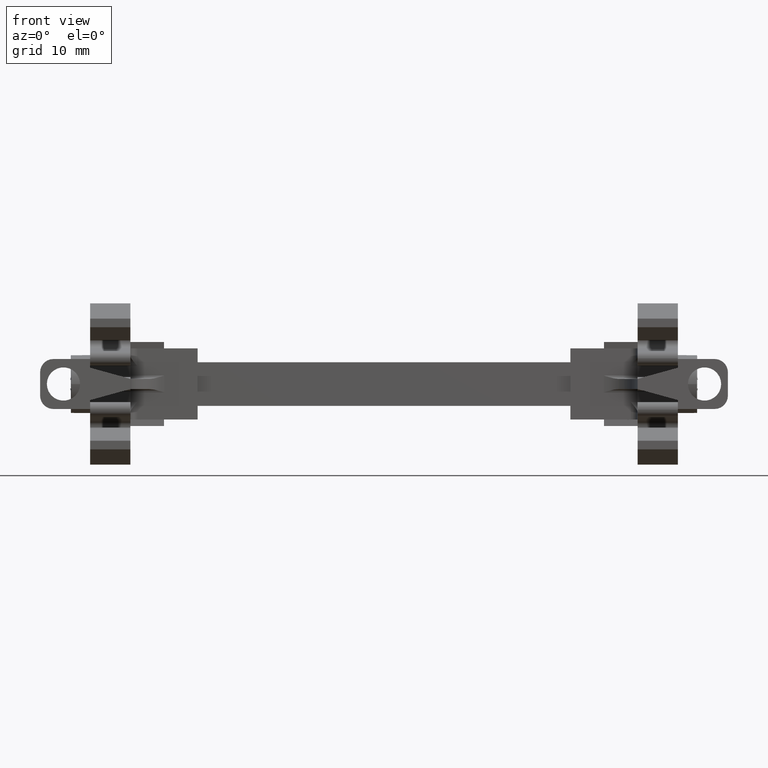
[diagram: clean part render]
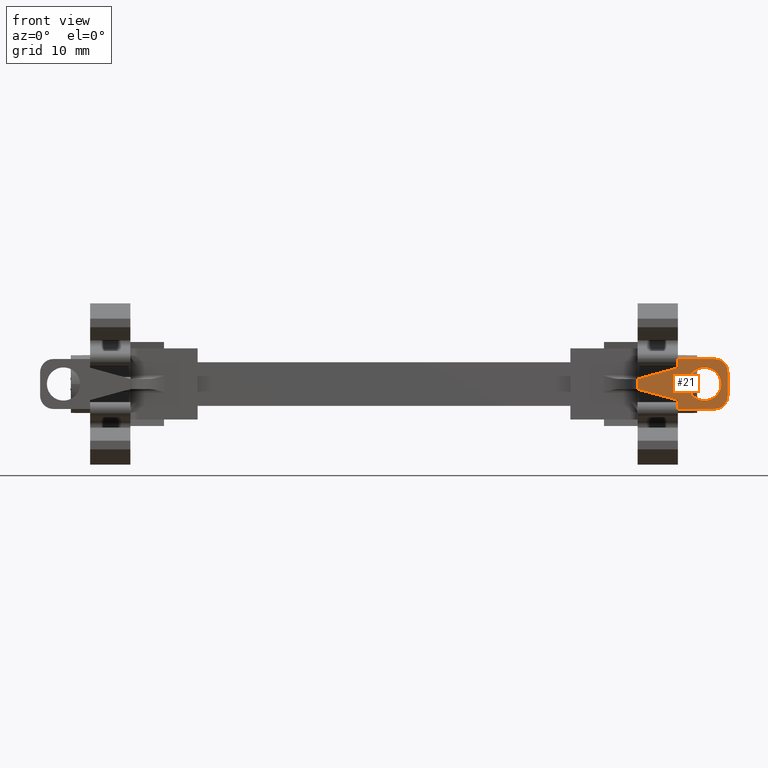
[diagram: same view with one face highlighted and labeled with its STEP entity id]
A machine part, front view. The second image highlights one B-rep face of the part: STEP entity #21.
In plain terms, the highlighted planar face has unit normal (0, -1, 0).
Its self-contained STEP definition (entity closure, byte-faithful):
#3 = EDGE_CURVE ( 'NONE', #3653, #3718, #21605, .T. ) ;
#9 = EDGE_CURVE ( 'NONE', #3646, #3713, #21642, .T. ) ;
#20 = EDGE_CURVE ( 'NONE', #3638, #3747, #447, .T. ) ;
#21 = ADVANCED_FACE ( 'NONE', ( #21685, #21665 ), #21684, .T. ) ;
#25 = EDGE_CURVE ( 'NONE', #3638, #3653, #21716, .T. ) ;
#30 = EDGE_CURVE ( 'NONE', #3718, #3646, #21720, .T. ) ;
#41 = EDGE_CURVE ( 'NONE', #3277, #3308, #467, .T. ) ;
#412 = VECTOR ( 'NONE', #21636, 1000.000000000000000 ) ;
#422 = AXIS2_PLACEMENT_3D ( 'NONE', #21649, #21715, #21708 ) ;
#429 = AXIS2_PLACEMENT_3D ( 'NONE', #21695, #21737, #21712 ) ;
#433 = VECTOR ( 'NONE', #21710, 1000.000000000000000 ) ;
#447 = CIRCLE ( 'NONE', #422, 1.980000000000002600 ) ;
#449 = VECTOR ( 'NONE', #21705, 1000.000000000000000 ) ;
#451 = VECTOR ( 'NONE', #21680, 1000.000000000000000 ) ;
#466 = AXIS2_PLACEMENT_3D ( 'NONE', #21816, #21834, #21785 ) ;
#467 = CIRCLE ( 'NONE', #466, 2.474999999999997900 ) ;
#918 = AXIS2_PLACEMENT_3D ( 'NONE', #8039, #8024, #8055 ) ;
#939 = CIRCLE ( 'NONE', #918, 2.474999999999997900 ) ;
#1578 = VECTOR ( 'NONE', #14419, 1000.000000000000000 ) ;
#1601 = VECTOR ( 'NONE', #14375, 1000.000000000000000 ) ;
#3277 = VERTEX_POINT ( 'NONE', #5676 ) ;
#3308 = VERTEX_POINT ( 'NONE', #5685 ) ;
#3602 = VERTEX_POINT ( 'NONE', #5892 ) ;
#3638 = VERTEX_POINT ( 'NONE', #5891 ) ;
#3646 = VERTEX_POINT ( 'NONE', #5913 ) ;
#3651 = VERTEX_POINT ( 'NONE', #5874 ) ;
#3653 = VERTEX_POINT ( 'NONE', #5866 ) ;
#3713 = VERTEX_POINT ( 'NONE', #5953 ) ;
#3714 = VERTEX_POINT ( 'NONE', #5961 ) ;
#3718 = VERTEX_POINT ( 'NONE', #5943 ) ;
#3733 = VERTEX_POINT ( 'NONE', #5931 ) ;
#3747 = VERTEX_POINT ( 'NONE', #5923 ) ;
#4426 = VECTOR ( 'NONE', #9257, 1000.000000000000000 ) ;
#4458 = VECTOR ( 'NONE', #10370, 1000.000000000000000 ) ;
#4559 = CIRCLE ( 'NONE', #4563, 1.980000000000002600 ) ;
#4563 = AXIS2_PLACEMENT_3D ( 'NONE', #9448, #9469, #9495 ) ;
#5676 = CARTESIAN_POINT ( 'NONE',  ( -52.33664581438637200, -112.7399380817970200, 215.9835481131995000 ) ) ;
#5685 = CARTESIAN_POINT ( 'NONE',  ( -47.38664581438637700, -112.7399380817969600, 215.9835481131995000 ) ) ;
#5866 = CARTESIAN_POINT ( 'NONE',  ( -53.82164581438640000, -112.7399380817969900, 219.7048630735139900 ) ) ;
#5874 = CARTESIAN_POINT ( 'NONE',  ( -53.82164581438633600, -112.7399380817970600, 212.2622331528851000 ) ) ;
#5891 = CARTESIAN_POINT ( 'NONE',  ( -48.36164581438638500, -112.7399380817969900, 219.7048630735140500 ) ) ;
#5892 = CARTESIAN_POINT ( 'NONE',  ( -53.82164581438628700, -112.7399380817970600, 213.5675638474400300 ) ) ;
#5913 = CARTESIAN_POINT ( 'NONE',  ( -59.82164581438628700, -112.7399380817970500, 216.7335480981489600 ) ) ;
#5923 = CARTESIAN_POINT ( 'NONE',  ( -46.38164581438637400, -112.7399380817969600, 217.7248630735140900 ) ) ;
#5931 = CARTESIAN_POINT ( 'NONE',  ( -46.38164581438636700, -112.7399380817969900, 214.2422331528850100 ) ) ;
#5943 = CARTESIAN_POINT ( 'NONE',  ( -53.82164581438637200, -112.7399380817970400, 218.3875323488580000 ) ) ;
#5953 = CARTESIAN_POINT ( 'NONE',  ( -59.82164581438630800, -112.7399380817971100, 215.2215480981490400 ) ) ;
#5961 = CARTESIAN_POINT ( 'NONE',  ( -48.36164581438635700, -112.7399380817970600, 212.2622331528851000 ) ) ;
#8024 = DIRECTION ( 'NONE',  ( -1.101172293446148100E-014, 1.000000000000000000, 0.0000000000000000000 ) ) ;
#8039 = CARTESIAN_POINT ( 'NONE',  ( -49.86164581438637100, -112.7399380817969900, 215.9835481131995000 ) ) ;
#8055 = DIRECTION ( 'NONE',  ( -1.000000000000000000, -1.121437398611270200E-014, 0.0000000000000000000 ) ) ;
#8640 = EDGE_CURVE ( 'NONE', #3747, #3733, #14386, .T. ) ;
#8668 = EDGE_CURVE ( 'NONE', #3713, #3602, #14417, .T. ) ;
#9202 = LINE ( 'NONE', #9218, #4426 ) ;
#9218 = CARTESIAN_POINT ( 'NONE',  ( -53.82164581438652100, -112.7399380817971100, 212.2622331528851000 ) ) ;
#9257 = DIRECTION ( 'NONE',  ( 1.000000000000000000, 0.0000000000000000000, 2.403906012228000300E-015 ) ) ;
#9385 = EDGE_CURVE ( 'NONE', #3308, #3277, #939, .T. ) ;
#9448 = CARTESIAN_POINT ( 'NONE',  ( -48.36164581438637800, -112.7399380817970200, 214.2422331528850100 ) ) ;
#9469 = DIRECTION ( 'NONE',  ( -1.049160784736400100E-014, 1.000000000000000000, -9.044991914139729700E-037 ) ) ;
#9495 = DIRECTION ( 'NONE',  ( 1.000000000000000000, 7.008983741320423700E-015, 0.0000000000000000000 ) ) ;
#10323 = LINE ( 'NONE', #10342, #4458 ) ;
#10342 = CARTESIAN_POINT ( 'NONE',  ( -53.82164581438628700, -112.7399380817969900, 188.2738655272060600 ) ) ;
#10370 = DIRECTION ( 'NONE',  ( 0.0000000000000000000, -0.0000000000000000000, -1.000000000000000000 ) ) ;
#14375 = DIRECTION ( 'NONE',  ( 1.759965832074445300E-015, 1.846487133488476300E-029, -1.000000000000000000 ) ) ;
#14380 = CARTESIAN_POINT ( 'NONE',  ( -46.38164581438637400, -112.7399380817969600, 219.7048630735139900 ) ) ;
#14386 = LINE ( 'NONE', #14380, #1601 ) ;
#14417 = LINE ( 'NONE', #14440, #1578 ) ;
#14419 = DIRECTION ( 'NONE',  ( 0.9640415414303847900, 0.0000000000000000000, -0.2657515877591849500 ) ) ;
#14440 = CARTESIAN_POINT ( 'NONE',  ( -59.82164581438620100, -112.7399380817971200, 215.2215480981490400 ) ) ;
#17004 = EDGE_LOOP ( 'NONE', ( #23904, #24096, #24000, #23886, #23915, #23953, #23944, #24076, #23917, #23955 ) ) ;
#17005 = EDGE_LOOP ( 'NONE', ( #23983, #23985 ) ) ;
#17478 = EDGE_CURVE ( 'NONE', #3602, #3651, #10323, .T. ) ;
#17531 = EDGE_CURVE ( 'NONE', #3651, #3714, #9202, .T. ) ;
#17565 = EDGE_CURVE ( 'NONE', #3733, #3714, #4559, .T. ) ;
#21605 = LINE ( 'NONE', #21606, #412 ) ;
#21606 = CARTESIAN_POINT ( 'NONE',  ( -53.82164581438640000, -112.7399380817969900, 188.2738655272060600 ) ) ;
#21636 = DIRECTION ( 'NONE',  ( 0.0000000000000000000, -0.0000000000000000000, -1.000000000000000000 ) ) ;
#21642 = LINE ( 'NONE', #21643, #451 ) ;
#21643 = CARTESIAN_POINT ( 'NONE',  ( -59.82164581438628700, -112.7399380817970600, 188.2738655272060600 ) ) ;
#21649 = CARTESIAN_POINT ( 'NONE',  ( -48.36164581438637800, -112.7399380817969900, 217.7248630735140900 ) ) ;
#21665 = FACE_OUTER_BOUND ( 'NONE', #17004, .T. ) ;
#21680 = DIRECTION ( 'NONE',  ( 0.0000000000000000000, -0.0000000000000000000, -1.000000000000000000 ) ) ;
#21684 = PLANE ( 'NONE',  #429 ) ;
#21685 = FACE_BOUND ( 'NONE', #17005, .T. ) ;
#21695 = CARTESIAN_POINT ( 'NONE',  ( -53.82164581438629400, -112.7399380817969900, 188.2738655272060600 ) ) ;
#21705 = DIRECTION ( 'NONE',  ( -1.000000000000000000, 0.0000000000000000000, -2.403906012228000300E-015 ) ) ;
#21708 = DIRECTION ( 'NONE',  ( -1.000000000000000000, -7.008983741320423700E-015, 0.0000000000000000000 ) ) ;
#21710 = DIRECTION ( 'NONE',  ( -0.9640415414303835600, 0.0000000000000000000, -0.2657515877591893900 ) ) ;
#21712 = DIRECTION ( 'NONE',  ( 1.000000000000000000, 1.101172293446148100E-014, 0.0000000000000000000 ) ) ;
#21715 = DIRECTION ( 'NONE',  ( -1.049160784736400100E-014, 1.000000000000000000, 2.802596928649635400E-045 ) ) ;
#21716 = LINE ( 'NONE', #21736, #449 ) ;
#21720 = LINE ( 'NONE', #21723, #433 ) ;
#21723 = CARTESIAN_POINT ( 'NONE',  ( -53.82164581438630100, -112.7399380817970500, 218.3875323488580300 ) ) ;
#21736 = CARTESIAN_POINT ( 'NONE',  ( -53.82164581438652100, -112.7399380817969900, 219.7048630735139900 ) ) ;
#21737 = DIRECTION ( 'NONE',  ( 1.101172293446148100E-014, -1.000000000000000000, 0.0000000000000000000 ) ) ;
#21785 = DIRECTION ( 'NONE',  ( -1.000000000000000000, -1.121437398611270200E-014, 0.0000000000000000000 ) ) ;
#21816 = CARTESIAN_POINT ( 'NONE',  ( -49.86164581438637100, -112.7399380817969900, 215.9835481131995000 ) ) ;
#21834 = DIRECTION ( 'NONE',  ( -1.101172293446148100E-014, 1.000000000000000000, 0.0000000000000000000 ) ) ;
#23886 = ORIENTED_EDGE ( 'NONE', *, *, #30, .T. ) ;
#23904 = ORIENTED_EDGE ( 'NONE', *, *, #20, .F. ) ;
#23915 = ORIENTED_EDGE ( 'NONE', *, *, #9, .T. ) ;
#23917 = ORIENTED_EDGE ( 'NONE', *, *, #17565, .F. ) ;
#23944 = ORIENTED_EDGE ( 'NONE', *, *, #17478, .T. ) ;
#23953 = ORIENTED_EDGE ( 'NONE', *, *, #8668, .T. ) ;
#23955 = ORIENTED_EDGE ( 'NONE', *, *, #8640, .F. ) ;
#23983 = ORIENTED_EDGE ( 'NONE', *, *, #41, .T. ) ;
#23985 = ORIENTED_EDGE ( 'NONE', *, *, #9385, .T. ) ;
#24000 = ORIENTED_EDGE ( 'NONE', *, *, #3, .T. ) ;
#24076 = ORIENTED_EDGE ( 'NONE', *, *, #17531, .T. ) ;
#24096 = ORIENTED_EDGE ( 'NONE', *, *, #25, .T. ) ;